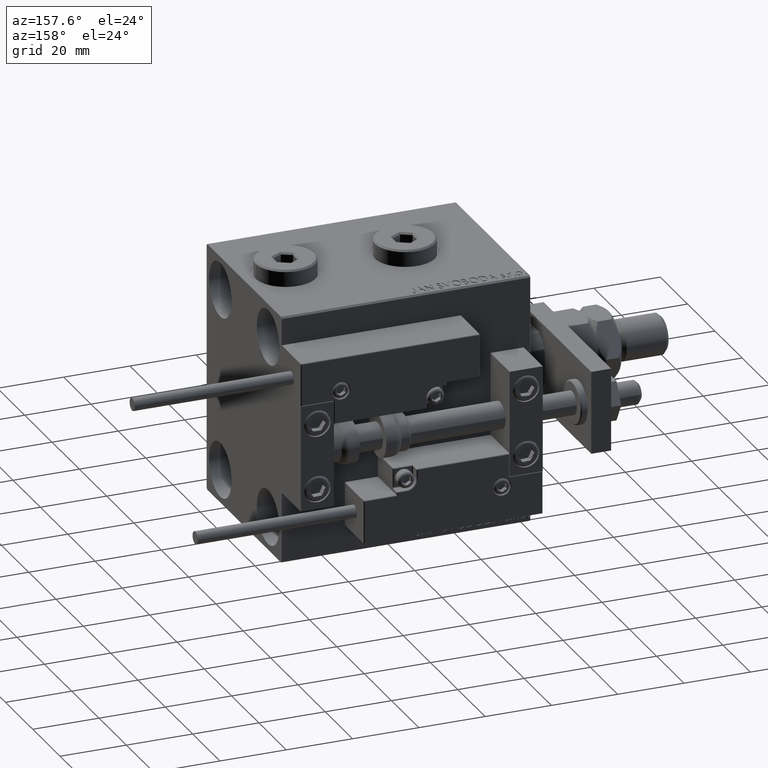
[diagram: clean part render]
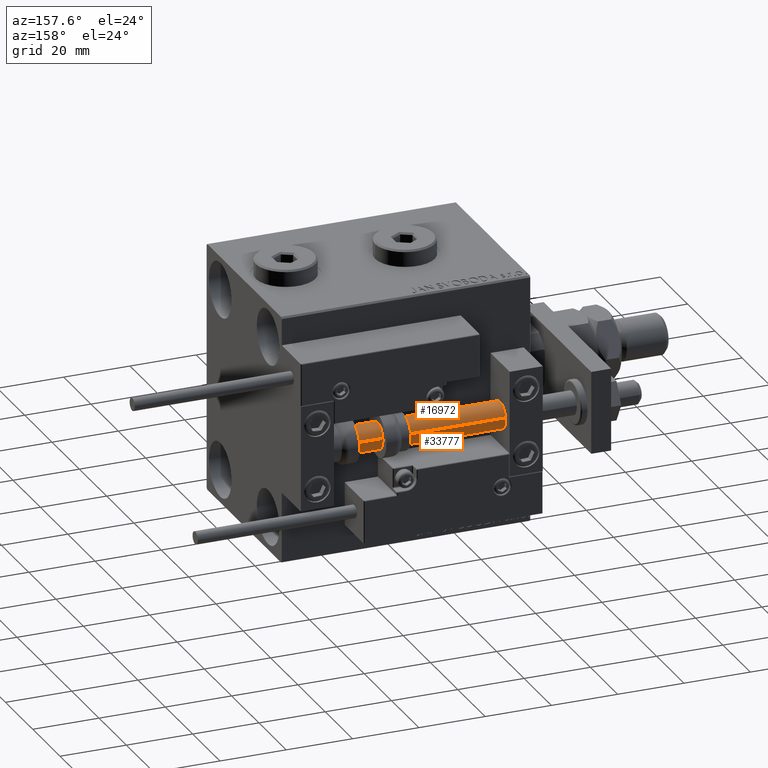
[diagram: same view with one multi-face feature highlighted, each face labeled with its STEP entity id]
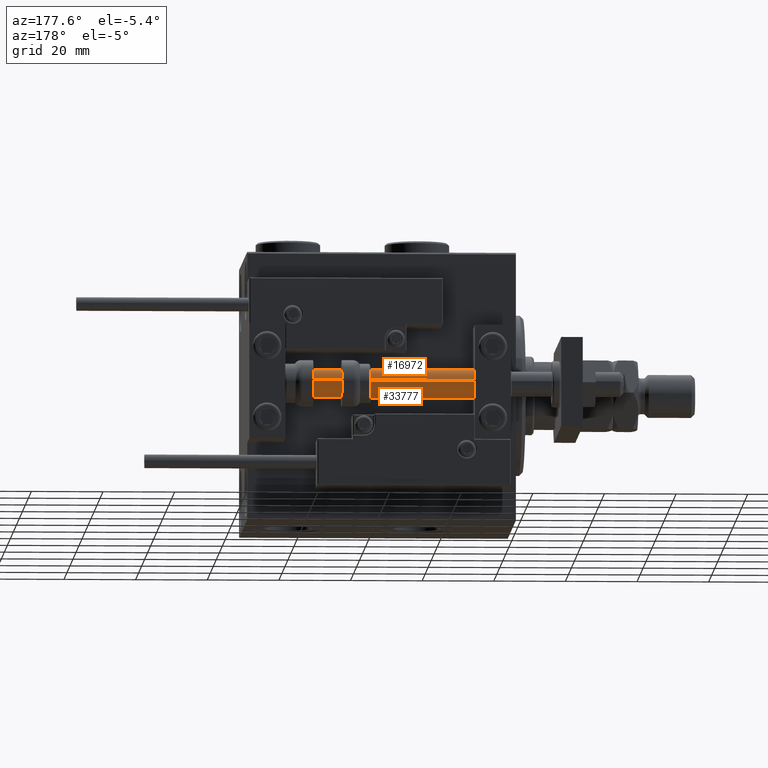
[diagram: same view with one multi-face feature highlighted, each face labeled with its STEP entity id]
A machine part, auxiliary view. The highlighted faces form ONE feature: a constant-radius fillet chain: 2 tangent blend faces with common blend radius 4 mm. The faces share edges in the B-rep.
A second angle (auxiliary view) of the same feature is appended — it is thin or edge-on in the first view.
Their STEP definitions:
[1] entity #16972 (Cylinder):
#580 = ORIENTED_EDGE ( 'NONE', *, *, #40303, .T. ) ;
#2246 = VERTEX_POINT ( 'NONE', #8041 ) ;
#7008 = CARTESIAN_POINT ( 'NONE',  ( 4.000000000000000000, 4.898587196589412829E-16, 2.000000000000029310 ) ) ;
#7028 = DIRECTION ( 'NONE',  ( 0.000000000000000000, 0.000000000000000000, 1.000000000000000000 ) ) ;
#7048 = CIRCLE ( 'NONE', #46514, 4.000000000000000000 ) ;
#8041 = CARTESIAN_POINT ( 'NONE',  ( 4.000000000000000000, 4.898587196589412829E-16, 75.00000000000000000 ) ) ;
#9559 = LINE ( 'NONE', #39038, #25756 ) ;
#10820 = CARTESIAN_POINT ( 'NONE',  ( -4.000000000000000000, 0.000000000000000000, 75.00000000000000000 ) ) ;
#11049 = CARTESIAN_POINT ( 'NONE',  ( -4.000000000000000000, 0.000000000000000000, 2.000000000000029310 ) ) ;
#11840 = VECTOR ( 'NONE', #30908, 1000.000000000000000 ) ;
#13419 = CYLINDRICAL_SURFACE ( 'NONE', #35066, 4.000000000000000000 ) ;
#13691 = FACE_OUTER_BOUND ( 'NONE', #34045, .T. ) ;
#15309 = CARTESIAN_POINT ( 'NONE',  ( -4.000000000000000000, 0.000000000000000000, 75.00000000000000000 ) ) ;
#15760 = VERTEX_POINT ( 'NONE', #7008 ) ;
#16972 = ADVANCED_FACE ( 'NONE', ( #13691 ), #13419, .T. ) ;
#20953 = DIRECTION ( 'NONE',  ( -0.000000000000000000, -0.000000000000000000, 1.000000000000000000 ) ) ;
#21110 = EDGE_CURVE ( 'NONE', #15760, #38000, #7048, .T. ) ;
#23660 = DIRECTION ( 'NONE',  ( 1.000000000000000000, 0.000000000000000000, 0.000000000000000000 ) ) ;
#24453 = DIRECTION ( 'NONE',  ( 1.000000000000000000, 0.000000000000000000, 0.000000000000000000 ) ) ;
#25250 = CARTESIAN_POINT ( 'NONE',  ( 0.000000000000000000, 0.000000000000000000, 75.00000000000000000 ) ) ;
#25255 = CARTESIAN_POINT ( 'NONE',  ( 0.000000000000000000, 0.000000000000000000, 2.000000000000029310 ) ) ;
#25756 = VECTOR ( 'NONE', #46616, 1000.000000000000000 ) ;
#25800 = DIRECTION ( 'NONE',  ( -1.000000000000000000, 0.000000000000000000, 0.000000000000000000 ) ) ;
#28433 = ORIENTED_EDGE ( 'NONE', *, *, #52298, .F. ) ;
#29517 = CIRCLE ( 'NONE', #32044, 4.000000000000000000 ) ;
#29800 = DIRECTION ( 'NONE',  ( -0.000000000000000000, -0.000000000000000000, -1.000000000000000000 ) ) ;
#30136 = CARTESIAN_POINT ( 'NONE',  ( 0.000000000000000000, 0.000000000000000000, 75.00000000000000000 ) ) ;
#30908 = DIRECTION ( 'NONE',  ( -0.000000000000000000, -0.000000000000000000, -1.000000000000000000 ) ) ;
#32044 = AXIS2_PLACEMENT_3D ( 'NONE', #30136, #7028, #23660 ) ;
#33297 = ORIENTED_EDGE ( 'NONE', *, *, #35683, .F. ) ;
#34045 = EDGE_LOOP ( 'NONE', ( #28433, #580, #35356, #33297 ) ) ;
#35066 = AXIS2_PLACEMENT_3D ( 'NONE', #25250, #29800, #25800 ) ;
#35356 = ORIENTED_EDGE ( 'NONE', *, *, #21110, .T. ) ;
#35683 = EDGE_CURVE ( 'NONE', #43890, #38000, #47571, .T. ) ;
#38000 = VERTEX_POINT ( 'NONE', #11049 ) ;
#39038 = CARTESIAN_POINT ( 'NONE',  ( 4.000000000000000000, 4.898587196589412829E-16, 75.00000000000000000 ) ) ;
#40303 = EDGE_CURVE ( 'NONE', #2246, #15760, #9559, .T. ) ;
#43890 = VERTEX_POINT ( 'NONE', #10820 ) ;
#46514 = AXIS2_PLACEMENT_3D ( 'NONE', #25255, #20953, #24453 ) ;
#46616 = DIRECTION ( 'NONE',  ( -0.000000000000000000, -0.000000000000000000, -1.000000000000000000 ) ) ;
#47571 = LINE ( 'NONE', #15309, #11840 ) ;
#52298 = EDGE_CURVE ( 'NONE', #2246, #43890, #29517, .T. ) ;
[2] entity #33777 (Cylinder):
#208 = ORIENTED_EDGE ( 'NONE', *, *, #35683, .T. ) ;
#2246 = VERTEX_POINT ( 'NONE', #8041 ) ;
#7008 = CARTESIAN_POINT ( 'NONE',  ( 4.000000000000000000, 4.898587196589412829E-16, 2.000000000000029310 ) ) ;
#7316 = DIRECTION ( 'NONE',  ( -1.000000000000000000, 0.000000000000000000, 0.000000000000000000 ) ) ;
#8041 = CARTESIAN_POINT ( 'NONE',  ( 4.000000000000000000, 4.898587196589412829E-16, 75.00000000000000000 ) ) ;
#8357 = ORIENTED_EDGE ( 'NONE', *, *, #40303, .F. ) ;
#9559 = LINE ( 'NONE', #39038, #25756 ) ;
#10820 = CARTESIAN_POINT ( 'NONE',  ( -4.000000000000000000, 0.000000000000000000, 75.00000000000000000 ) ) ;
#11049 = CARTESIAN_POINT ( 'NONE',  ( -4.000000000000000000, 0.000000000000000000, 2.000000000000029310 ) ) ;
#11437 = AXIS2_PLACEMENT_3D ( 'NONE', #12360, #16898, #28745 ) ;
#11840 = VECTOR ( 'NONE', #30908, 1000.000000000000000 ) ;
#12360 = CARTESIAN_POINT ( 'NONE',  ( 0.000000000000000000, 0.000000000000000000, 2.000000000000029310 ) ) ;
#14011 = CIRCLE ( 'NONE', #29472, 4.000000000000000000 ) ;
#15309 = CARTESIAN_POINT ( 'NONE',  ( -4.000000000000000000, 0.000000000000000000, 75.00000000000000000 ) ) ;
#15760 = VERTEX_POINT ( 'NONE', #7008 ) ;
#16898 = DIRECTION ( 'NONE',  ( -0.000000000000000000, -0.000000000000000000, 1.000000000000000000 ) ) ;
#22215 = AXIS2_PLACEMENT_3D ( 'NONE', #31736, #31466, #7316 ) ;
#23652 = CARTESIAN_POINT ( 'NONE',  ( 0.000000000000000000, 0.000000000000000000, 75.00000000000000000 ) ) ;
#25756 = VECTOR ( 'NONE', #46616, 1000.000000000000000 ) ;
#28745 = DIRECTION ( 'NONE',  ( 1.000000000000000000, 0.000000000000000000, 0.000000000000000000 ) ) ;
#28897 = EDGE_LOOP ( 'NONE', ( #8357, #43529, #208, #44520 ) ) ;
#29472 = AXIS2_PLACEMENT_3D ( 'NONE', #23652, #43788, #47834 ) ;
#30908 = DIRECTION ( 'NONE',  ( -0.000000000000000000, -0.000000000000000000, -1.000000000000000000 ) ) ;
#31466 = DIRECTION ( 'NONE',  ( -0.000000000000000000, -0.000000000000000000, -1.000000000000000000 ) ) ;
#31736 = CARTESIAN_POINT ( 'NONE',  ( 0.000000000000000000, 0.000000000000000000, 75.00000000000000000 ) ) ;
#33777 = ADVANCED_FACE ( 'NONE', ( #47879 ), #34686, .T. ) ;
#34578 = CIRCLE ( 'NONE', #11437, 4.000000000000000000 ) ;
#34686 = CYLINDRICAL_SURFACE ( 'NONE', #22215, 4.000000000000000000 ) ;
#35683 = EDGE_CURVE ( 'NONE', #43890, #38000, #47571, .T. ) ;
#38000 = VERTEX_POINT ( 'NONE', #11049 ) ;
#39038 = CARTESIAN_POINT ( 'NONE',  ( 4.000000000000000000, 4.898587196589412829E-16, 75.00000000000000000 ) ) ;
#40303 = EDGE_CURVE ( 'NONE', #2246, #15760, #9559, .T. ) ;
#43529 = ORIENTED_EDGE ( 'NONE', *, *, #51272, .F. ) ;
#43788 = DIRECTION ( 'NONE',  ( 0.000000000000000000, 0.000000000000000000, 1.000000000000000000 ) ) ;
#43890 = VERTEX_POINT ( 'NONE', #10820 ) ;
#44520 = ORIENTED_EDGE ( 'NONE', *, *, #51476, .T. ) ;
#46616 = DIRECTION ( 'NONE',  ( -0.000000000000000000, -0.000000000000000000, -1.000000000000000000 ) ) ;
#47571 = LINE ( 'NONE', #15309, #11840 ) ;
#47834 = DIRECTION ( 'NONE',  ( 1.000000000000000000, 0.000000000000000000, 0.000000000000000000 ) ) ;
#47879 = FACE_OUTER_BOUND ( 'NONE', #28897, .T. ) ;
#51272 = EDGE_CURVE ( 'NONE', #43890, #2246, #14011, .T. ) ;
#51476 = EDGE_CURVE ( 'NONE', #38000, #15760, #34578, .T. ) ;